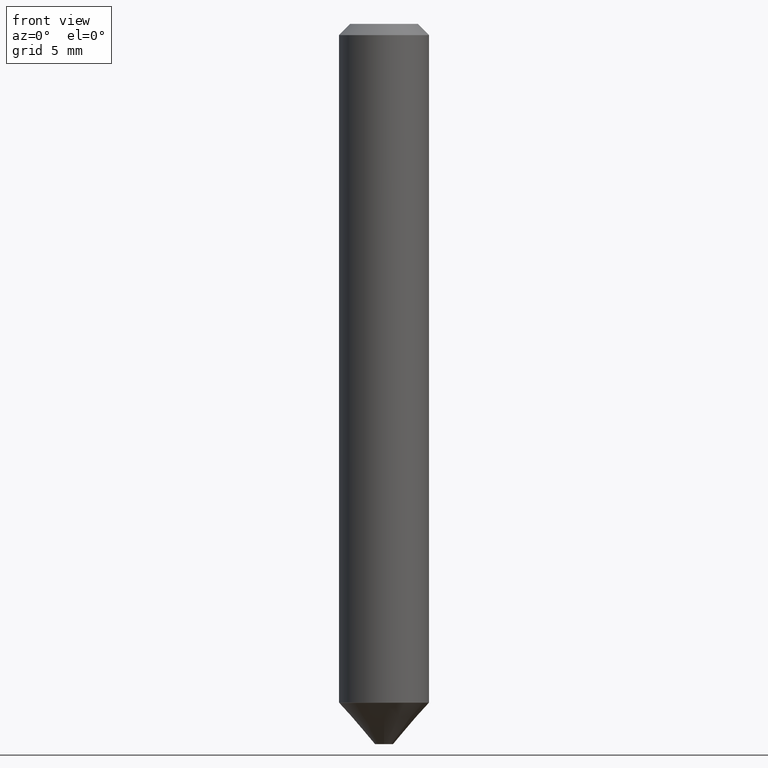
[diagram: clean part render]
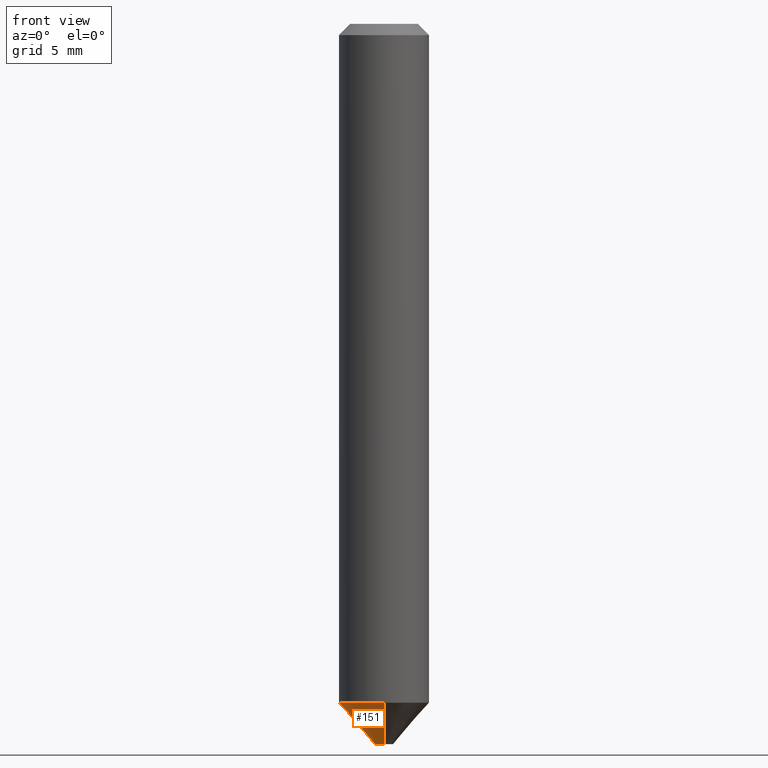
[diagram: same view with one face highlighted and labeled with its STEP entity id]
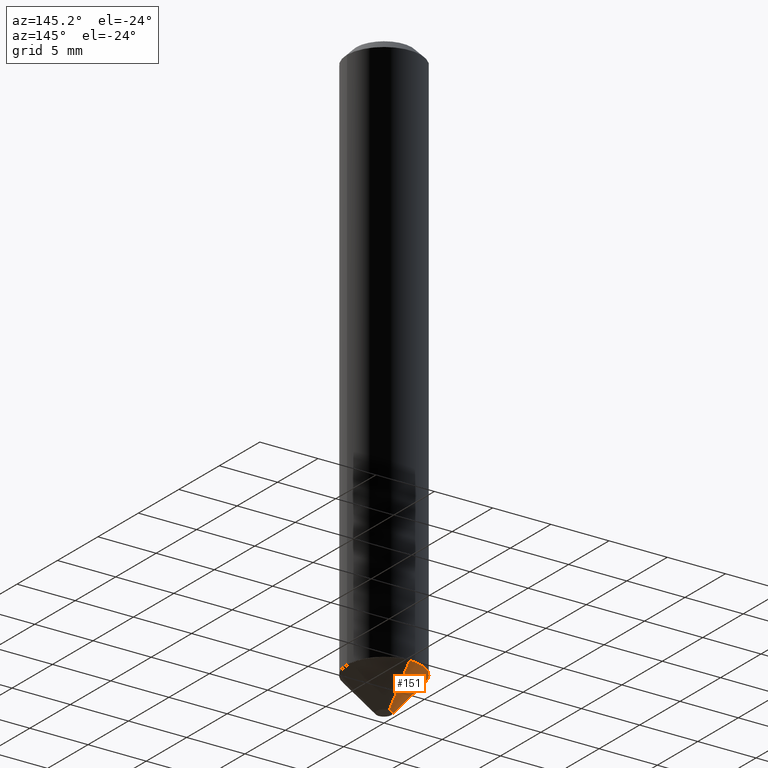
[diagram: same view with one face highlighted and labeled with its STEP entity id]
A machine part, front view. The second image highlights one B-rep face of the part: STEP entity #151.
A second angle (auxiliary view) of the same face is appended — the face is thin or edge-on in the first view.
In plain terms, the highlighted conical surface has half-angle 41.144 deg.
Its self-contained STEP definition (entity closure, byte-faithful):
#20 = CARTESIAN_POINT ( 'NONE',  ( -8.728703347107393598E-16, -0.1250000000000068834, -1.885543996145981227 ) ) ;
#21 = CONICAL_SURFACE ( 'NONE', #208, 0.1250000000000003053, 0.7180921986036510329 ) ;
#23 = VERTEX_POINT ( 'NONE', #366 ) ;
#30 = ORIENTED_EDGE ( 'NONE', *, *, #69, .F. ) ;
#34 = DIRECTION ( 'NONE',  ( 6.982962677686265922E-15, 1.000000000000000000, -4.370956789862810105E-15 ) ) ;
#46 = EDGE_CURVE ( 'NONE', #198, #315, #317, .T. ) ;
#49 = LINE ( 'NONE', #20, #408 ) ;
#69 = EDGE_CURVE ( 'NONE', #23, #315, #268, .T. ) ;
#71 = CARTESIAN_POINT ( 'NONE',  ( -8.575622497213981566E-16, -0.1250000000000069944, -1.885543996145981227 ) ) ;
#107 = FACE_OUTER_BOUND ( 'NONE', #183, .T. ) ;
#117 = CIRCLE ( 'NONE', #385, 0.02500000000000041772 ) ;
#123 = DIRECTION ( 'NONE',  ( 2.456799184199791959E-29, -3.475255592641091320E-15, -1.000000000000000000 ) ) ;
#125 = ORIENTED_EDGE ( 'NONE', *, *, #189, .T. ) ;
#133 = DIRECTION ( 'NONE',  ( 2.456799184199791959E-29, -3.475255592641091320E-15, -1.000000000000000000 ) ) ;
#151 = ADVANCED_FACE ( 'NONE', ( #107 ), #21, .T. ) ;
#169 = CARTESIAN_POINT ( 'NONE',  ( 4.611044690453673152E-29, -6.583333563238326650E-15, -1.885543996145981671 ) ) ;
#175 = CARTESIAN_POINT ( 'NONE',  ( 4.611044690453673152E-29, -6.583333563238326650E-15, -1.885543996145981671 ) ) ;
#183 = EDGE_LOOP ( 'NONE', ( #30, #217, #125, #289 ) ) ;
#189 = EDGE_CURVE ( 'NONE', #285, #198, #49, .T. ) ;
#198 = VERTEX_POINT ( 'NONE', #71 ) ;
#208 = AXIS2_PLACEMENT_3D ( 'NONE', #175, #302, #213 ) ;
#213 = DIRECTION ( 'NONE',  ( -6.982962677686265922E-15, -1.000000000000000000, 4.370956789862810105E-15 ) ) ;
#217 = ORIENTED_EDGE ( 'NONE', *, *, #303, .F. ) ;
#220 = CARTESIAN_POINT ( 'NONE',  ( 4.892240107348993741E-29, -6.981097430743353343E-15, -2.000000000000000000 ) ) ;
#243 = VECTOR ( 'NONE', #273, 39.37007874015748143 ) ;
#252 = CARTESIAN_POINT ( 'NONE',  ( 8.728703347108306705E-16, 0.1249999999999936162, -1.885543996145982337 ) ) ;
#268 = LINE ( 'NONE', #399, #243 ) ;
#273 = DIRECTION ( 'NONE',  ( 4.675010081021729684E-15, 0.6579491768388420203, 0.7530623352001414306 ) ) ;
#282 = DIRECTION ( 'NONE',  ( -4.594434545680034351E-15, -0.6579491768388366912, 0.7530623352001460935 ) ) ;
#285 = VERTEX_POINT ( 'NONE', #286 ) ;
#286 = CARTESIAN_POINT ( 'NONE',  ( -5.237222008264251368E-16, -0.02500000000000739825, -2.000000000000000000 ) ) ;
#289 = ORIENTED_EDGE ( 'NONE', *, *, #46, .T. ) ;
#296 = AXIS2_PLACEMENT_3D ( 'NONE', #169, #133, #34 ) ;
#302 = DIRECTION ( 'NONE',  ( -2.456799184199791959E-29, 3.475255592641091320E-15, 1.000000000000000000 ) ) ;
#303 = EDGE_CURVE ( 'NONE', #285, #23, #117, .T. ) ;
#315 = VERTEX_POINT ( 'NONE', #252 ) ;
#317 = CIRCLE ( 'NONE', #296, 0.1250000000000003053 ) ;
#357 = DIRECTION ( 'NONE',  ( 6.982962677686265133E-15, 1.000000000000000000, 0.000000000000000000 ) ) ;
#366 = CARTESIAN_POINT ( 'NONE',  ( 5.329070518201253110E-16, 0.02499999999999344066, -2.000000000000000000 ) ) ;
#385 = AXIS2_PLACEMENT_3D ( 'NONE', #220, #123, #357 ) ;
#399 = CARTESIAN_POINT ( 'NONE',  ( 8.881784197001733529E-16, 0.1249999999999937134, -1.885543996145982337 ) ) ;
#408 = VECTOR ( 'NONE', #282, 39.37007874015748143 ) ;